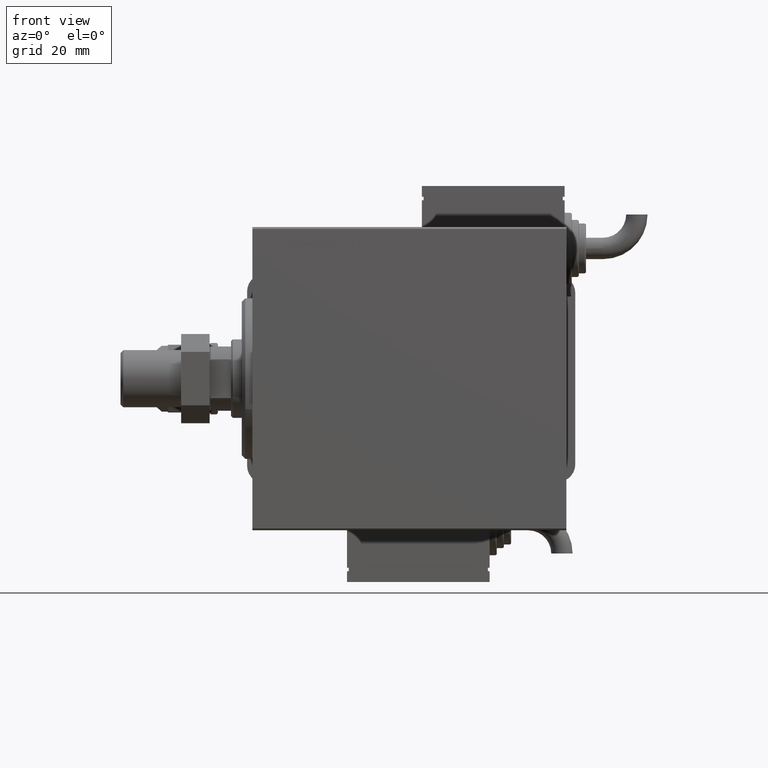
[diagram: clean part render]
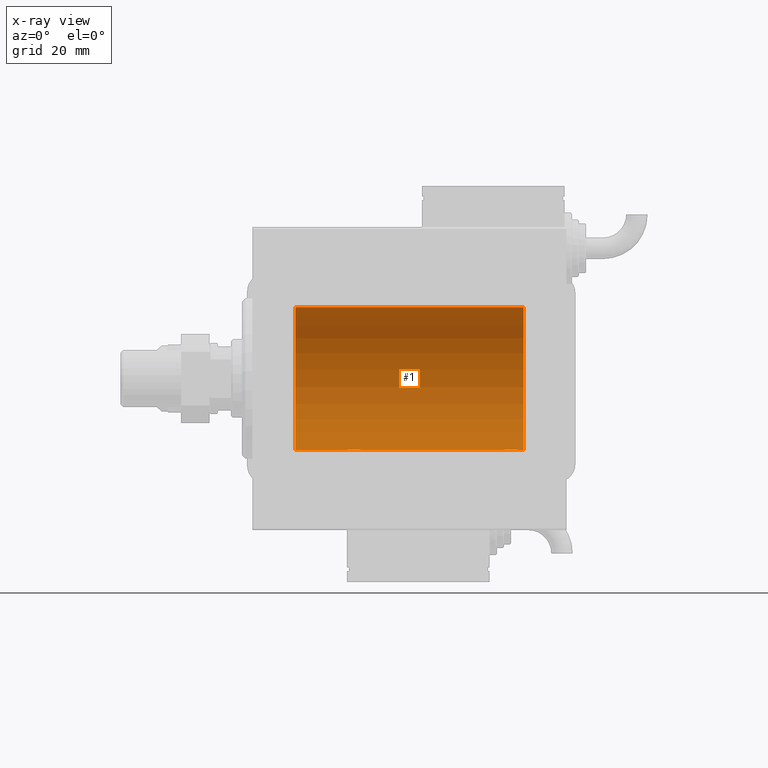
[diagram: x-ray — body ghosted, one internal face saturated and labeled with its STEP entity id]
A machine part, front view, then the same camera in x-ray: the body is ghosted and one INTERNAL B-rep face — a face not visible from any outside direction — is saturated and labeled: STEP entity #1.
In plain terms, the highlighted cylindrical surface (partial cylindrical patch) has radius 20 mm, axis along (-1, -0, -0).
Its self-contained STEP definition (entity closure, byte-faithful):
#1 = ADVANCED_FACE ( 'NONE', ( #24792 ), #34524, .F. ) ;
#566 = CARTESIAN_POINT ( 'NONE',  ( 26.76423634872104884, 1.002099838626308248, -19.97517568592526160 ) ) ;
#1376 = AXIS2_PLACEMENT_3D ( 'NONE', #25389, #43951, #11364 ) ;
#2397 = EDGE_CURVE ( 'NONE', #44367, #3566, #32733, .T. ) ;
#3566 = VERTEX_POINT ( 'NONE', #51213 ) ;
#4012 = CARTESIAN_POINT ( 'NONE',  ( 29.50297226784953608, 1.735228749583830332, -19.92471474456648650 ) ) ;
#4193 = CARTESIAN_POINT ( 'NONE',  ( 71.49354240926170689, 1.747830109444730384, -19.92373272380676497 ) ) ;
#4474 = DIRECTION ( 'NONE',  ( -1.000000000000000000, 0.000000000000000000, 0.000000000000000000 ) ) ;
#4492 = CARTESIAN_POINT ( 'NONE',  ( 74.39789687358864967, 0.6443418861413126031, -19.98998539619404724 ) ) ;
#4904 = ORIENTED_EDGE ( 'NONE', *, *, #26664, .F. ) ;
#5141 = CARTESIAN_POINT ( 'NONE',  ( 26.56384771616671969, 0.5179893069484556856, -19.99370013622814568 ) ) ;
#5148 = ORIENTED_EDGE ( 'NONE', *, *, #60016, .T. ) ;
#5937 = CARTESIAN_POINT ( 'NONE',  ( 76.00000000000000000, 2.449293598294706513E-15, -20.00000000000000000 ) ) ;
#6903 = DIRECTION ( 'NONE',  ( -1.000000000000000000, -0.000000000000000000, -0.000000000000000000 ) ) ;
#7677 = CARTESIAN_POINT ( 'NONE',  ( 30.09007067689674741, 1.220099331833897294, -19.96304379627741099 ) ) ;
#8466 = CARTESIAN_POINT ( 'NONE',  ( 72.62981181290707866, 2.000047251570880036, -19.89974399317116038 ) ) ;
#8891 = CARTESIAN_POINT ( 'NONE',  ( 30.50000000000000000, 0.1305706983324451675, -19.99999999999999289 ) ) ;
#9072 = CARTESIAN_POINT ( 'NONE',  ( 74.23489454601981663, 1.003547732426802730, -19.97510079925436699 ) ) ;
#9668 = CARTESIAN_POINT ( 'NONE',  ( 70.60234886833930545, 0.6450624715427508704, -19.98996196681220994 ) ) ;
#11193 = CARTESIAN_POINT ( 'NONE',  ( 11.99999999999999645, 0.000000000000000000, 0.000000000000000000 ) ) ;
#11364 = DIRECTION ( 'NONE',  ( 0.000000000000000000, 0.000000000000000000, 1.000000000000000000 ) ) ;
#12319 = LINE ( 'NONE', #50063, #58552 ) ;
#12558 = CARTESIAN_POINT ( 'NONE',  ( 30.43573148867292488, 0.5196544277756701691, -19.99365919015135518 ) ) ;
#13157 = CARTESIAN_POINT ( 'NONE',  ( 29.01899474186110695, 1.935912154109695082, -19.90610216711450420 ) ) ;
#13436 = EDGE_CURVE ( 'NONE', #27666, #44367, #58890, .T. ) ;
#13652 = CARTESIAN_POINT ( 'NONE',  ( 73.01899474186113537, 1.935912154109691752, -19.90610216711450775 ) ) ;
#16506 = VECTOR ( 'NONE', #38523, 1000.000000000000000 ) ;
#17137 = CARTESIAN_POINT ( 'NONE',  ( 30.29753901127163118, 0.8865903856744307143, -19.98070694681039683 ) ) ;
#17439 = CARTESIAN_POINT ( 'NONE',  ( 28.76241417820002155, 1.987020435121070516, -19.90106552791689154 ) ) ;
#17624 = CARTESIAN_POINT ( 'NONE',  ( 73.50297226784952898, 1.735228749583831442, -19.92471474456648650 ) ) ;
#17740 = CARTESIAN_POINT ( 'NONE',  ( 28.62981181290706090, 2.000047251570884477, -19.89974399317115683 ) ) ;
#18032 = CARTESIAN_POINT ( 'NONE',  ( 29.71960275349742986, 1.590453176650915346, -19.93679350243183634 ) ) ;
#18513 = CARTESIAN_POINT ( 'NONE',  ( 74.50000000000000000, 0.1305706983324447512, -20.00000000000000000 ) ) ;
#18816 = CARTESIAN_POINT ( 'NONE',  ( 70.76423634872104174, 1.002099838626304695, -19.97517568592526871 ) ) ;
#19157 = CARTESIAN_POINT ( 'NONE',  ( 26.60234886833925927, 0.6450624715427553113, -19.98996196681220638 ) ) ;
#20745 = VERTEX_POINT ( 'NONE', #28581 ) ;
#21717 = CARTESIAN_POINT ( 'NONE',  ( 26.90940266542447645, 1.219458756546263789, -19.96308513509966787 ) ) ;
#22396 = EDGE_LOOP ( 'NONE', ( #33353, #27682, #5148, #28292, #33257, #52500, #4904, #57424 ) ) ;
#22497 = CARTESIAN_POINT ( 'NONE',  ( 71.27049887769368297, 1.598854313793175885, -19.93684595445884966 ) ) ;
#22616 = CARTESIAN_POINT ( 'NONE',  ( 29.14371130639851160, 1.898109641280501636, -19.90978941500366872 ) ) ;
#22712 = VERTEX_POINT ( 'NONE', #50369 ) ;
#22990 = EDGE_CURVE ( 'NONE', #25988, #22712, #45096, .T. ) ;
#23082 = DIRECTION ( 'NONE',  ( 0.000000000000000000, 0.000000000000000000, 1.000000000000000000 ) ) ;
#23096 = CARTESIAN_POINT ( 'NONE',  ( 70.50000000000000000, 0.1322335637814657239, -20.00000000000000355 ) ) ;
#24792 = FACE_OUTER_BOUND ( 'NONE', #22396, .T. ) ;
#25389 = CARTESIAN_POINT ( 'NONE',  ( 76.00000000000000000, 0.000000000000000000, 0.000000000000000000 ) ) ;
#25517 = DIRECTION ( 'NONE',  ( 0.000000000000000000, 0.000000000000000000, 1.000000000000000000 ) ) ;
#25988 = VERTEX_POINT ( 'NONE', #47642 ) ;
#26275 = CARTESIAN_POINT ( 'NONE',  ( 26.50000000000001066, 0.1322335637814670561, -19.99999999999999645 ) ) ;
#26664 = EDGE_CURVE ( 'NONE', #20745, #22712, #43101, .T. ) ;
#27208 = CARTESIAN_POINT ( 'NONE',  ( 76.00000000000000000, 2.449293598294706513E-15, -20.00000000000000000 ) ) ;
#27666 = VERTEX_POINT ( 'NONE', #58407 ) ;
#27682 = ORIENTED_EDGE ( 'NONE', *, *, #13436, .F. ) ;
#28266 = CARTESIAN_POINT ( 'NONE',  ( 73.38596189455839180, 1.797847595792761100, -19.91909332229798579 ) ) ;
#28292 = ORIENTED_EDGE ( 'NONE', *, *, #59627, .T. ) ;
#28581 = CARTESIAN_POINT ( 'NONE',  ( 70.50000000000000000, -5.133775462521235346E-15, -20.00000000000000000 ) ) ;
#30308 = AXIS2_PLACEMENT_3D ( 'NONE', #11193, #48636, #25517 ) ;
#30847 = CARTESIAN_POINT ( 'NONE',  ( 29.38596189455837049, 1.797847595792762432, -19.91909332229799290 ) ) ;
#31143 = CARTESIAN_POINT ( 'NONE',  ( 26.51298505384673732, 0.2622407139811037680, -19.99868965376114716 ) ) ;
#31470 = EDGE_CURVE ( 'NONE', #25988, #43022, #48622, .T. ) ;
#31931 = CARTESIAN_POINT ( 'NONE',  ( 70.51298505384674797, 0.2622407139811032684, -19.99868965376115071 ) ) ;
#32224 = CARTESIAN_POINT ( 'NONE',  ( 76.00000000000000000, 0.000000000000000000, 0.000000000000000000 ) ) ;
#32240 = CARTESIAN_POINT ( 'NONE',  ( 73.82060165083835557, 1.507796451871721066, -19.94330239452388298 ) ) ;
#32733 = LINE ( 'NONE', #41549, #51072 ) ;
#33257 = ORIENTED_EDGE ( 'NONE', *, *, #31470, .F. ) ;
#33353 = ORIENTED_EDGE ( 'NONE', *, *, #2397, .F. ) ;
#34524 = CYLINDRICAL_SURFACE ( 'NONE', #1376, 20.00000000000000000 ) ;
#35706 = CARTESIAN_POINT ( 'NONE',  ( 30.39789687358864967, 0.6443418861413116039, -19.98998539619404724 ) ) ;
#36607 = CARTESIAN_POINT ( 'NONE',  ( 27.27049887769365810, 1.598854313793178994, -19.93684595445884256 ) ) ;
#36984 = DIRECTION ( 'NONE',  ( -1.000000000000000000, -0.000000000000000000, -0.000000000000000000 ) ) ;
#37727 = CARTESIAN_POINT ( 'NONE',  ( 26.50000000000000355, -6.257798774011376898E-15, -20.00000000000000000 ) ) ;
#38523 = DIRECTION ( 'NONE',  ( -1.000000000000000000, -0.000000000000000000, -0.000000000000000000 ) ) ;
#38923 = EDGE_CURVE ( 'NONE', #20745, #3566, #56025, .T. ) ;
#40266 = CARTESIAN_POINT ( 'NONE',  ( 29.82060165083834846, 1.507796451871724175, -19.94330239452387943 ) ) ;
#40754 = CARTESIAN_POINT ( 'NONE',  ( 74.00738641543991037, 1.321069663197662614, -19.95654117037011233 ) ) ;
#40936 = DIRECTION ( 'NONE',  ( -1.000000000000000000, -0.000000000000000000, -0.000000000000000000 ) ) ;
#40994 = CIRCLE ( 'NONE', #30308, 20.00000000000000000 ) ;
#41169 = CARTESIAN_POINT ( 'NONE',  ( 27.97486091545001230, 1.947330458682949850, -19.90522393307485061 ) ) ;
#41549 = CARTESIAN_POINT ( 'NONE',  ( 76.00000000000000000, 2.449293598294706513E-15, -20.00000000000000000 ) ) ;
#41653 = CARTESIAN_POINT ( 'NONE',  ( 70.90940266542450843, 1.219458756546260236, -19.96308513509967497 ) ) ;
#42384 = AXIS2_PLACEMENT_3D ( 'NONE', #32224, #4474, #23082 ) ;
#42818 = VERTEX_POINT ( 'NONE', #53195 ) ;
#43022 = VERTEX_POINT ( 'NONE', #58593 ) ;
#43101 = LINE ( 'NONE', #5937, #16506 ) ;
#43951 = DIRECTION ( 'NONE',  ( -1.000000000000000000, -0.000000000000000000, -0.000000000000000000 ) ) ;
#44367 = VERTEX_POINT ( 'NONE', #27208 ) ;
#45096 = B_SPLINE_CURVE_WITH_KNOTS ( 'NONE', 3,
 ( #37727, #26275, #31143, #5141, #19157, #45142, #566, #21717, #46040, #36607, #54864, #41169, #45740, #17740, #17439, #13157, #22616, #30847, #4012, #18032, #40266, #49401, #7677, #58836, #17137, #35706, #12558, #59733, #8891, #49700 ),
 .UNSPECIFIED., .F., .F.,
 ( 4, 2, 2, 2, 2, 2, 2, 2, 2, 2, 2, 2, 2, 2, 4 ),
 ( 5.963022395843225278E-20, 0.0003910512220831150344, 0.0007821024441662300687, 0.001173153666249344886, 0.001564204888332459921, 0.002346307332498689339, 0.003128409776664918974, 0.003519460998748033791, 0.003910512220831149043, 0.004301563442914263860, 0.004692614664997378678, 0.005083665887080494362, 0.005474717109163609180, 0.005865768331246723997, 0.006256819553329837948 ),
 .UNSPECIFIED. ) ;
#45142 = CARTESIAN_POINT ( 'NONE',  ( 26.70278656943304796, 0.8872481584516701547, -19.98067755938510004 ) ) ;
#45626 = CARTESIAN_POINT ( 'NONE',  ( 73.14371130639852936, 1.898109641280498527, -19.90978941500366517 ) ) ;
#45740 = CARTESIAN_POINT ( 'NONE',  ( 28.23819846102561826, 1.999905101582720279, -19.89975827978156886 ) ) ;
#45925 = CARTESIAN_POINT ( 'NONE',  ( 72.23819846102561826, 1.999905101582715394, -19.89975827978156531 ) ) ;
#46040 = CARTESIAN_POINT ( 'NONE',  ( 26.99384229619287012, 1.322305185229304625, -19.95645382900617548 ) ) ;
#46219 = CARTESIAN_POINT ( 'NONE',  ( 74.29753901127162408, 0.8865903856744312694, -19.98070694681039328 ) ) ;
#46795 = VECTOR ( 'NONE', #6903, 1000.000000000000000 ) ;
#47642 = CARTESIAN_POINT ( 'NONE',  ( 26.50000000000000355, -6.257798774011376898E-15, -20.00000000000000000 ) ) ;
#48622 = LINE ( 'NONE', #53788, #46795 ) ;
#48636 = DIRECTION ( 'NONE',  ( -1.000000000000000000, 0.000000000000000000, 0.000000000000000000 ) ) ;
#49401 = CARTESIAN_POINT ( 'NONE',  ( 30.00738641543989260, 1.321069663197666388, -19.95654117037011588 ) ) ;
#49700 = CARTESIAN_POINT ( 'NONE',  ( 30.50000000000000000, 2.449293582768389958E-15, -20.00000000000000000 ) ) ;
#50063 = CARTESIAN_POINT ( 'NONE',  ( 76.00000000000000000, 0.000000000000000000, 20.00000000000000000 ) ) ;
#50183 = CARTESIAN_POINT ( 'NONE',  ( 70.99384229619288078, 1.322305185229300184, -19.95645382900616482 ) ) ;
#50369 = CARTESIAN_POINT ( 'NONE',  ( 30.50000000000000000, 2.449293582768389958E-15, -20.00000000000000000 ) ) ;
#50485 = CARTESIAN_POINT ( 'NONE',  ( 70.50000000000000000, -5.133775462521235346E-15, -20.00000000000000000 ) ) ;
#50787 = CARTESIAN_POINT ( 'NONE',  ( 74.09007067689672965, 1.220099331833893741, -19.96304379627740744 ) ) ;
#51072 = VECTOR ( 'NONE', #36984, 1000.000000000000000 ) ;
#51085 = CARTESIAN_POINT ( 'NONE',  ( 74.48691292011450571, 0.2631998640366452480, -19.99867931558986101 ) ) ;
#51213 = CARTESIAN_POINT ( 'NONE',  ( 74.50000000000001421, 2.449293582762867932E-15, -20.00000000000000000 ) ) ;
#52500 = ORIENTED_EDGE ( 'NONE', *, *, #22990, .T. ) ;
#53195 = CARTESIAN_POINT ( 'NONE',  ( 11.99999999999999645, 0.000000000000000000, 20.00000000000000000 ) ) ;
#53788 = CARTESIAN_POINT ( 'NONE',  ( 76.00000000000000000, 2.449293598294706513E-15, -20.00000000000000000 ) ) ;
#54755 = CARTESIAN_POINT ( 'NONE',  ( 70.70278656943303019, 0.8872481584516642705, -19.98067755938510359 ) ) ;
#54864 = CARTESIAN_POINT ( 'NONE',  ( 27.49354240926169268, 1.747830109444738156, -19.92373272380676852 ) ) ;
#55346 = CARTESIAN_POINT ( 'NONE',  ( 70.56384771616671969, 0.5179893069484544643, -19.99370013622813858 ) ) ;
#55650 = CARTESIAN_POINT ( 'NONE',  ( 74.50000000000001421, 2.449293582762867932E-15, -20.00000000000000000 ) ) ;
#55942 = CARTESIAN_POINT ( 'NONE',  ( 73.71960275349746894, 1.590453176650917566, -19.93679350243184345 ) ) ;
#56025 = B_SPLINE_CURVE_WITH_KNOTS ( 'NONE', 3,
 ( #50485, #23096, #31931, #55346, #9668, #54755, #18816, #41653, #50183, #22497, #4193, #59322, #45925, #8466, #59922, #13652, #45626, #28266, #17624, #55942, #32240, #40754, #50787, #9072, #46219, #4492, #60216, #51085, #18513, #55650 ),
 .UNSPECIFIED., .F., .F.,
 ( 4, 2, 2, 2, 2, 2, 2, 2, 2, 2, 2, 2, 2, 2, 4 ),
 ( 2.321975990544223827E-18, 0.0003910512220831165522, 0.0007821024441662306108, 0.001173153666249344886, 0.001564204888332458836, 0.002346307332498715360, 0.003128409776664972317, 0.003519460998748080629, 0.003910512220831188074, 0.004301563442914295952, 0.004692614664997402096, 0.005083665887080509975, 0.005474717109163616986, 0.005865768331246724865, 0.006256819553329831876 ),
 .UNSPECIFIED. ) ;
#57424 = ORIENTED_EDGE ( 'NONE', *, *, #38923, .T. ) ;
#58407 = CARTESIAN_POINT ( 'NONE',  ( 76.00000000000000000, 0.000000000000000000, 20.00000000000000000 ) ) ;
#58552 = VECTOR ( 'NONE', #40936, 1000.000000000000000 ) ;
#58593 = CARTESIAN_POINT ( 'NONE',  ( 11.99999999999999645, 2.449293598294706513E-15, -20.00000000000000000 ) ) ;
#58836 = CARTESIAN_POINT ( 'NONE',  ( 30.23489454601983795, 1.003547732426805617, -19.97510079925437054 ) ) ;
#58890 = CIRCLE ( 'NONE', #42384, 20.00000000000000000 ) ;
#59322 = CARTESIAN_POINT ( 'NONE',  ( 71.97486091545005138, 1.947330458682943188, -19.90522393307485771 ) ) ;
#59627 = EDGE_CURVE ( 'NONE', #42818, #43022, #40994, .T. ) ;
#59733 = CARTESIAN_POINT ( 'NONE',  ( 30.48691292011447374, 0.2631998640366455255, -19.99867931558985745 ) ) ;
#59922 = CARTESIAN_POINT ( 'NONE',  ( 72.76241417820001800, 1.987020435121066742, -19.90106552791689154 ) ) ;
#60016 = EDGE_CURVE ( 'NONE', #27666, #42818, #12319, .T. ) ;
#60216 = CARTESIAN_POINT ( 'NONE',  ( 74.43573148867291422, 0.5196544277756690589, -19.99365919015135518 ) ) ;